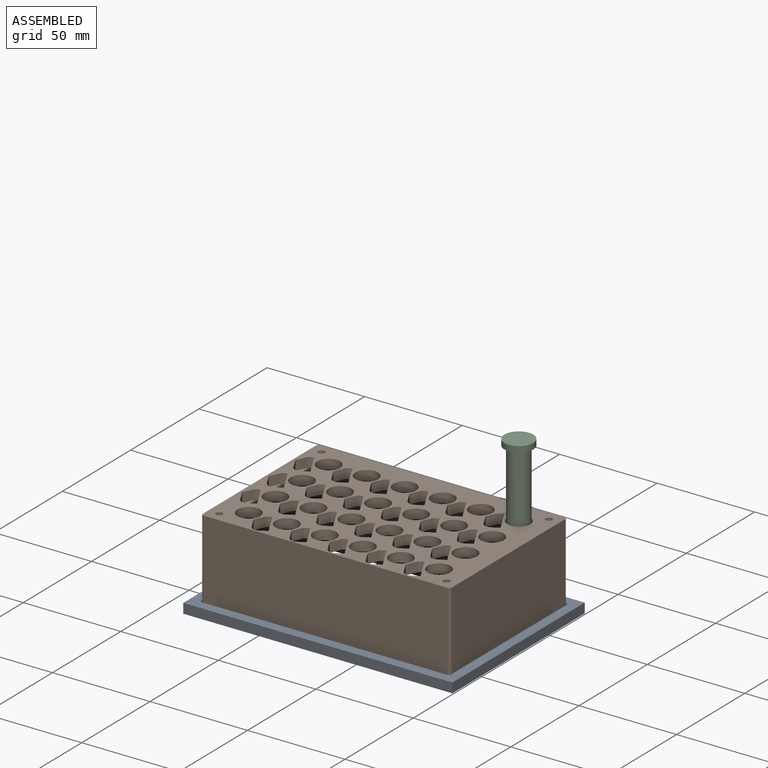
[diagram: assembled view]
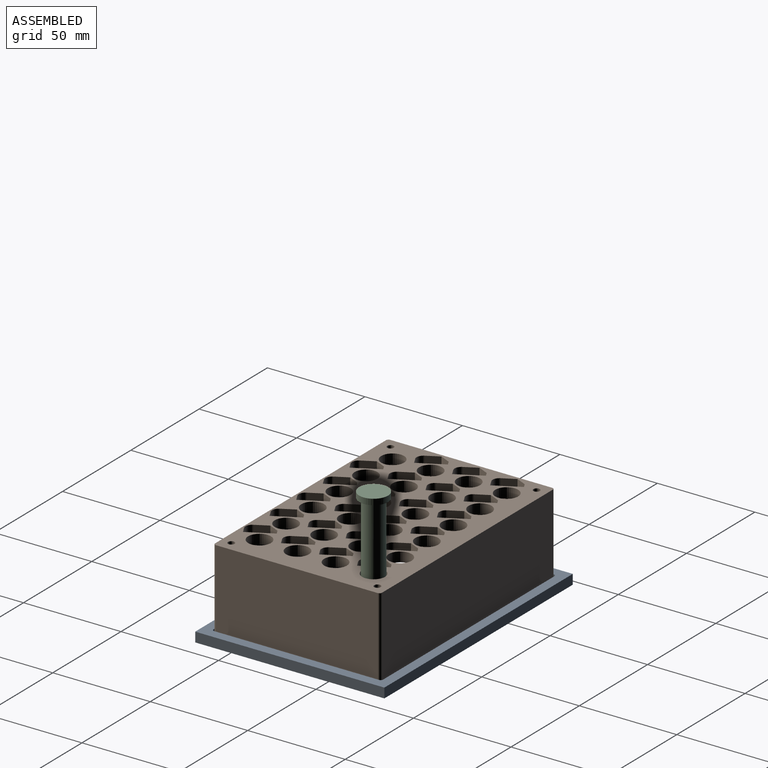
[diagram: assembled view, second angle]
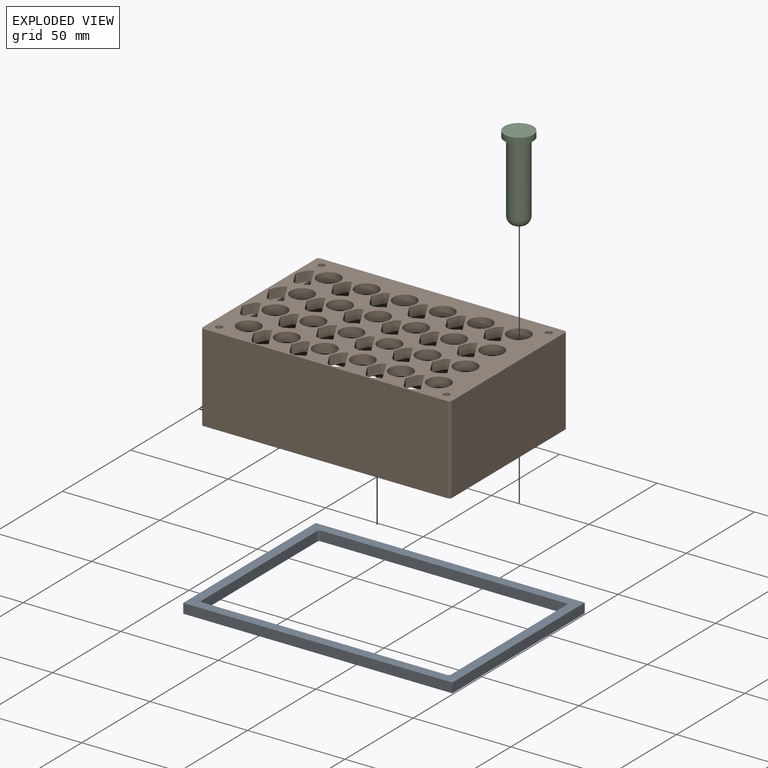
[diagram: exploded view]
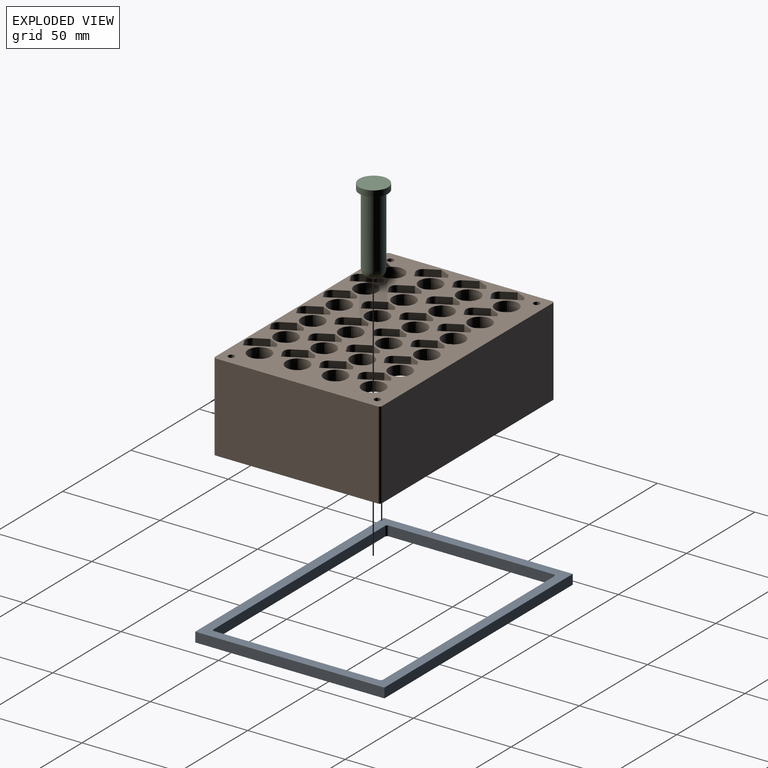
[diagram: exploded view, second angle]
ASSEMBLY  parts=3 mates=2
PART A: 14 faces, bbox 138x97x5 mm
  f0: plane 97x5mm, normal (1,0,0), area 485mm2, adj f1,f11,f12,f13
  f1: plane 138x5mm, normal (0,1,0), area 690mm2, adj f0,f2,f12,f13
  f2: plane 97x5mm, normal (-1,0,0), area 485mm2, adj f1,f11,f12,f13
  f3: cylinder r=1.2mm len=5mm, axis (0,0,-1), area 9.4mm2, adj f4,f10,f12,f13
  f4: plane 125.6x5mm, normal (0,-1,0), area 628mm2, adj f3,f5,f12,f13
  f5: cylinder r=1.2mm len=5mm, axis (0,0,-1), area 9.4mm2, adj f4,f6,f12,f13
  f6: plane 84.6x5mm, normal (-1,0,0), area 423mm2, adj f5,f7,f12,f13
  f7: cylinder r=1.2mm len=5mm, axis (0,0,-1), area 9.4mm2, adj f6,f8,f12,f13
  f8: plane 125.6x5mm, normal (0,1,0), area 628mm2, adj f7,f9,f12,f13
  f9: cylinder r=1.2mm len=5mm, axis (0,0,-1), area 9.4mm2, adj f8,f10,f12,f13
  f10: plane 84.6x5mm, normal (1,0,0), area 423mm2, adj f3,f9,f12,f13
  f11: plane 138x5mm, normal (0,-1,0), area 690mm2, adj f0,f2,f12,f13
  f12: plane 138x97mm, normal (0,0,1), area 2251.2mm2, adj f0,f1,f2,f3,f4,f5,f6,f7
  f13: plane 138x97mm, normal (0,0,-1), area 2251.2mm2, adj f0,f1,f2,f3,f4,f5,f6,f7
PART B: 201 faces, bbox 127.8x85.6x45 mm
  f0: plane 119.76x77.6mm, normal (0,0,-1), area 4609.4mm2, adj f6,f8,f9,f11,f12,f14,f15,f16
  f1: plane 0.88x0.62mm, normal (0,0,-1), area 0.2mm2, adj f149,f191,f192
  f2: plane 0.88x0.62mm, normal (0,0,-1), area 0.2mm2, adj f150,f191,f194
  f3: plane 0.88x0.62mm, normal (0,0,-1), area 0.2mm2, adj f148,f192,f193
  f4: plane 0.88x0.62mm, normal (0,0,-1), area 0.2mm2, adj f151,f193,f194
  f5: plane 83x45mm, normal (-1,0,0), area 3734.9mm2, adj f75,f195,f197,f198
  f6: plane 5x2.41mm, normal (0.48,-0.88,0), area 13.7mm2, adj f0,f7,f75,f146,f176
  f7: plane 5.43x5mm, normal (0.91,-0.42,0), area 29.9mm2, adj f6,f8,f75,f176
  f8: plane 6.34x5mm, normal (0.88,0.48,0), area 36mm2, adj f0,f7,f75,f145,f176
  f9: plane 5x2.41mm, normal (0.48,-0.88,0), area 13.7mm2, adj f0,f10,f75,f143,f177
  f10: plane 5.43x5mm, normal (0.91,-0.42,0), area 29.9mm2, adj f9,f11,f75,f177
  f11: plane 6.34x5mm, normal (0.88,0.48,0), area 36mm2, adj f0,f10,f75,f142,f177
  f12: plane 5x2.41mm, normal (0.48,-0.88,0), area 13.7mm2, adj f0,f13,f75,f140,f178
  f13: plane 5.43x5mm, normal (0.91,-0.42,0), area 29.9mm2, adj f12,f14,f75,f178
  f14: plane 6.34x5mm, normal (0.88,0.48,0), area 36mm2, adj f0,f13,f75,f139,f178
  f15: plane 5x2.41mm, normal (0.48,-0.88,0), area 13.7mm2, adj f0,f16,f75,f137
  f16: plane 5.43x5mm, normal (0.91,-0.42,0), area 29.9mm2, adj f0,f15,f17,f75
  f17: plane 6.34x5mm, normal (0.88,0.48,0), area 36mm2, adj f0,f16,f75,f136,f196
  f18: plane 5x2.41mm, normal (0.48,-0.88,0), area 13.7mm2, adj f0,f19,f75,f134
  f19: plane 5.43x5mm, normal (0.91,-0.42,0), area 29.9mm2, adj f0,f18,f20,f75
  f20: plane 6.34x5mm, normal (0.88,0.48,0), area 36mm2, adj f0,f19,f75,f133
  f21: plane 5x2.41mm, normal (0.48,-0.88,0), area 13.7mm2, adj f0,f22,f75,f131
  f22: plane 5.43x5mm, normal (0.91,-0.42,0), area 29.9mm2, adj f0,f21,f23,f75
  f23: plane 6.34x5mm, normal (0.88,0.48,0), area 36mm2, adj f0,f22,f75,f130
  f24: plane 5x2.41mm, normal (0.48,-0.88,0), area 13.7mm2, adj f0,f25,f75,f128
  f25: plane 5.43x5mm, normal (0.91,-0.42,0), area 29.9mm2, adj f0,f24,f26,f75
  f26: plane 6.34x5mm, normal (0.88,0.48,0), area 36mm2, adj f0,f25,f75,f127
  f27: plane 5x2.41mm, normal (0.48,-0.88,0), area 13.7mm2, adj f0,f28,f75,f125
  f28: plane 5.43x5mm, normal (0.91,-0.42,0), area 29.9mm2, adj f0,f27,f29,f75
  f29: plane 6.34x5mm, normal (0.88,0.48,0), area 36mm2, adj f0,f28,f75,f124,f182
  f30: plane 5x2.41mm, normal (0.48,-0.88,0), area 13.7mm2, adj f0,f31,f75,f122
  f31: plane 5.43x5mm, normal (0.91,-0.42,0), area 29.9mm2, adj f0,f30,f32,f75
  f32: plane 6.34x5mm, normal (0.88,0.48,0), area 36mm2, adj f0,f31,f75,f121
  f33: plane 5x2.41mm, normal (0.48,-0.88,0), area 13.7mm2, adj f0,f34,f75,f119
  f34: plane 5.43x5mm, normal (0.91,-0.42,0), area 29.9mm2, adj f0,f33,f35,f75
  f35: plane 6.34x5mm, normal (0.88,0.48,0), area 36mm2, adj f0,f34,f75,f118
  f36: plane 5x2.41mm, normal (0.48,-0.88,0), area 13.7mm2, adj f0,f37,f75,f116
  f37: plane 5.43x5mm, normal (0.91,-0.42,0), area 29.9mm2, adj f0,f36,f38,f75
  f38: plane 6.34x5mm, normal (0.88,0.48,0), area 36mm2, adj f0,f37,f75,f115
  f39: plane 5x2.41mm, normal (0.48,-0.88,0), area 13.7mm2, adj f0,f40,f75,f113
  f40: plane 5.43x5mm, normal (0.91,-0.42,0), area 29.9mm2, adj f0,f39,f41,f75
  f41: plane 6.34x5mm, normal (0.88,0.48,0), area 36mm2, adj f0,f40,f75,f112,f181
  f42: plane 5x2.41mm, normal (0.48,-0.88,0), area 13.7mm2, adj f0,f43,f75,f110
  f43: plane 5.43x5mm, normal (0.91,-0.42,0), area 29.9mm2, adj f0,f42,f44,f75
  f44: plane 6.34x5mm, normal (0.88,0.48,0), area 36mm2, adj f0,f43,f75,f109
  f45: plane 5x2.41mm, normal (0.48,-0.88,0), area 13.7mm2, adj f0,f46,f75,f107
  f46: plane 5.43x5mm, normal (0.91,-0.42,0), area 29.9mm2, adj f0,f45,f47,f75
  f47: plane 6.34x5mm, normal (0.88,0.48,0), area 36mm2, adj f0,f46,f75,f106
  f48: plane 5x2.41mm, normal (0.48,-0.88,0), area 13.7mm2, adj f0,f49,f75,f104
  f49: plane 5.43x5mm, normal (0.91,-0.42,0), area 29.9mm2, adj f0,f48,f50,f75
  f50: plane 6.34x5mm, normal (0.88,0.48,0), area 36mm2, adj f0,f49,f75,f103
  f51: plane 5x2.41mm, normal (0.48,-0.88,0), area 13.7mm2, adj f0,f52,f75,f101
  f52: plane 5.43x5mm, normal (0.91,-0.42,0), area 29.9mm2, adj f0,f51,f53,f75
  f53: plane 6.34x5mm, normal (0.88,0.48,0), area 36mm2, adj f0,f52,f75,f100,f180
  f54: plane 5x2.41mm, normal (0.48,-0.88,0), area 13.7mm2, adj f0,f55,f75,f98
  f55: plane 5.43x5mm, normal (0.91,-0.42,0), area 29.9mm2, adj f0,f54,f56,f75
  f56: plane 6.34x5mm, normal (0.88,0.48,0), area 36mm2, adj f0,f55,f75,f97
  f57: plane 5x2.41mm, normal (0.48,-0.88,0), area 13.7mm2, adj f0,f58,f75,f95
  f58: plane 5.43x5mm, normal (0.91,-0.42,0), area 29.9mm2, adj f0,f57,f59,f75
  f59: plane 6.34x5mm, normal (0.88,0.48,0), area 36mm2, adj f0,f58,f75,f94
  f60: plane 5x2.41mm, normal (0.48,-0.88,0), area 13.7mm2, adj f0,f61,f75,f92
  f61: plane 5.43x5mm, normal (0.91,-0.42,0), area 29.9mm2, adj f0,f60,f62,f75
  f62: plane 6.34x5mm, normal (0.88,0.48,0), area 36mm2, adj f0,f61,f75,f91
  f63: plane 5x2.41mm, normal (0.48,-0.88,0), area 13.7mm2, adj f0,f64,f75,f89
  f64: plane 5.43x5mm, normal (0.91,-0.42,0), area 29.9mm2, adj f0,f63,f65,f75
  f65: plane 6.34x5mm, normal (0.88,0.48,0), area 36mm2, adj f0,f64,f75,f88,f179
  f66: plane 5x2.41mm, normal (0.48,-0.88,0), area 13.7mm2, adj f0,f67,f75,f86
  f67: plane 5.43x5mm, normal (0.91,-0.42,0), area 29.9mm2, adj f0,f66,f68,f75
  f68: plane 6.34x5mm, normal (0.88,0.48,0), area 36mm2, adj f0,f67,f75,f85
  f69: plane 5x2.41mm, normal (0.48,-0.88,0), area 13.7mm2, adj f0,f70,f75,f83
  f70: plane 5.43x5mm, normal (0.91,-0.42,0), area 29.9mm2, adj f0,f69,f71,f75
  f71: plane 6.34x5mm, normal (0.88,0.48,0), area 36mm2, adj f0,f70,f75,f82
  f72: plane 5x2.41mm, normal (0.48,-0.88,0), area 13.7mm2, adj f0,f73,f75,f80
  f73: plane 5.43x5mm, normal (0.91,-0.42,0), area 29.9mm2, adj f0,f72,f74,f75
  f74: plane 6.34x5mm, normal (0.88,0.48,0), area 36mm2, adj f0,f73,f75,f79
  f75: plane 127.76x85.6mm, normal (0,0,1), area 6099.9mm2, adj f5,f6,f7,f8,f9,f10,f11,f12
  f76: plane 125.16x45mm, normal (0,1,0), area 5632.3mm2, adj f75,f195,f198,f199
  f77: plane 125.16x45mm, normal (0,-1,0), area 5632.3mm2, adj f75,f195,f197,f200
  f78: plane 83x45mm, normal (1,0,0), area 3734.9mm2, adj f75,f195,f199,f200
  f79: cylinder r=3.5mm len=5mm, axis (0,0,1), area 27.5mm2, adj f0,f74,f75,f81
  f80: plane 12.56x6.81mm, normal (-0.88,-0.48,0), area 71.4mm2, adj f0,f72,f75,f81
  f81: plane 5x3.55mm, normal (-0.48,0.88,0), area 20.2mm2, adj f0,f75,f79,f80
  f82: cylinder r=3.5mm len=5mm, axis (0,0,1), area 27.5mm2, adj f0,f71,f75,f84
  f83: plane 12.56x6.81mm, normal (-0.88,-0.48,0), area 71.4mm2, adj f0,f69,f75,f84
  f84: plane 5x3.55mm, normal (-0.48,0.88,0), area 20.2mm2, adj f0,f75,f82,f83
  f85: cylinder r=3.5mm len=5mm, axis (0,0,1), area 27.5mm2, adj f0,f68,f75,f87
  f86: plane 12.56x6.81mm, normal (-0.88,-0.48,0), area 71.4mm2, adj f0,f66,f75,f87
  f87: plane 5x3.55mm, normal (-0.48,0.88,0), area 20.2mm2, adj f0,f75,f85,f86
  f88: cylinder r=3.5mm len=5mm, axis (0,0,1), area 27.5mm2, adj f65,f75,f90,f179
  f89: plane 12.56x6.81mm, normal (-0.88,-0.48,0), area 71.4mm2, adj f0,f63,f75,f90,f179
  f90: plane 5x3.55mm, normal (-0.48,0.88,0), area 20.2mm2, adj f75,f88,f89,f179
  f91: cylinder r=3.5mm len=5mm, axis (0,0,1), area 27.5mm2, adj f0,f62,f75,f93
  f92: plane 12.56x6.81mm, normal (-0.88,-0.48,0), area 71.4mm2, adj f0,f60,f75,f93
  f93: plane 5x3.55mm, normal (-0.48,0.88,0), area 20.2mm2, adj f0,f75,f91,f92
  f94: cylinder r=3.5mm len=5mm, axis (0,0,1), area 27.5mm2, adj f0,f59,f75,f96
  f95: plane 12.56x6.81mm, normal (-0.88,-0.48,0), area 71.4mm2, adj f0,f57,f75,f96
  f96: plane 5x3.55mm, normal (-0.48,0.88,0), area 20.2mm2, adj f0,f75,f94,f95
  f97: cylinder r=3.5mm len=5mm, axis (0,0,1), area 27.5mm2, adj f0,f56,f75,f99
  f98: plane 12.56x6.81mm, normal (-0.88,-0.48,0), area 71.4mm2, adj f0,f54,f75,f99
  f99: plane 5x3.55mm, normal (-0.48,0.88,0), area 20.2mm2, adj f0,f75,f97,f98
  f100: cylinder r=3.5mm len=5mm, axis (0,0,1), area 27.5mm2, adj f53,f75,f102,f180
  f101: plane 12.56x6.81mm, normal (-0.88,-0.48,0), area 71.4mm2, adj f0,f51,f75,f102,f180
  f102: plane 5x3.55mm, normal (-0.48,0.88,0), area 20.2mm2, adj f75,f100,f101,f180
  f103: cylinder r=3.5mm len=5mm, axis (0,0,1), area 27.5mm2, adj f0,f50,f75,f105
  f104: plane 12.56x6.81mm, normal (-0.88,-0.48,0), area 71.4mm2, adj f0,f48,f75,f105
  f105: plane 5x3.55mm, normal (-0.48,0.88,0), area 20.2mm2, adj f0,f75,f103,f104
  f106: cylinder r=3.5mm len=5mm, axis (0,0,1), area 27.5mm2, adj f0,f47,f75,f108
  f107: plane 12.56x6.81mm, normal (-0.88,-0.48,0), area 71.4mm2, adj f0,f45,f75,f108
  f108: plane 5x3.55mm, normal (-0.48,0.88,0), area 20.2mm2, adj f0,f75,f106,f107
  f109: cylinder r=3.5mm len=5mm, axis (0,0,1), area 27.5mm2, adj f0,f44,f75,f111
  f110: plane 12.56x6.81mm, normal (-0.88,-0.48,0), area 71.4mm2, adj f0,f42,f75,f111
  f111: plane 5x3.55mm, normal (-0.48,0.88,0), area 20.2mm2, adj f0,f75,f109,f110
  f112: cylinder r=3.5mm len=5mm, axis (0,0,1), area 27.5mm2, adj f41,f75,f114,f181
  f113: plane 12.56x6.81mm, normal (-0.88,-0.48,0), area 71.4mm2, adj f0,f39,f75,f114,f181
  f114: plane 5x3.55mm, normal (-0.48,0.88,0), area 20.2mm2, adj f75,f112,f113,f181
  f115: cylinder r=3.5mm len=5mm, axis (0,0,1), area 27.5mm2, adj f0,f38,f75,f117
  f116: plane 12.56x6.81mm, normal (-0.88,-0.48,0), area 71.4mm2, adj f0,f36,f75,f117
  f117: plane 5x3.55mm, normal (-0.48,0.88,0), area 20.2mm2, adj f0,f75,f115,f116
  f118: cylinder r=3.5mm len=5mm, axis (0,0,1), area 27.5mm2, adj f0,f35,f75,f120
  f119: plane 12.56x6.81mm, normal (-0.88,-0.48,0), area 71.4mm2, adj f0,f33,f75,f120
  f120: plane 5x3.55mm, normal (-0.48,0.88,0), area 20.2mm2, adj f0,f75,f118,f119
  f121: cylinder r=3.5mm len=5mm, axis (0,0,1), area 27.5mm2, adj f0,f32,f75,f123
  f122: plane 12.56x6.81mm, normal (-0.88,-0.48,0), area 71.4mm2, adj f0,f30,f75,f123
  f123: plane 5x3.55mm, normal (-0.48,0.88,0), area 20.2mm2, adj f0,f75,f121,f122
  f124: cylinder r=3.5mm len=5mm, axis (0,0,1), area 27.5mm2, adj f29,f75,f126,f182
  f125: plane 12.56x6.81mm, normal (-0.88,-0.48,0), area 71.4mm2, adj f0,f27,f75,f126,f182
  f126: plane 5x3.55mm, normal (-0.48,0.88,0), area 20.2mm2, adj f75,f124,f125,f182
  f127: cylinder r=3.5mm len=5mm, axis (0,0,1), area 27.5mm2, adj f0,f26,f75,f129
  f128: plane 12.56x6.81mm, normal (-0.88,-0.48,0), area 71.4mm2, adj f0,f24,f75,f129
  f129: plane 5x3.55mm, normal (-0.48,0.88,0), area 20.2mm2, adj f0,f75,f127,f128
  f130: cylinder r=3.5mm len=5mm, axis (0,0,1), area 27.5mm2, adj f0,f23,f75,f132
  f131: plane 12.56x6.81mm, normal (-0.88,-0.48,0), area 71.4mm2, adj f0,f21,f75,f132
  f132: plane 5x3.55mm, normal (-0.48,0.88,0), area 20.2mm2, adj f0,f75,f130,f131
  f133: cylinder r=3.5mm len=5mm, axis (0,0,1), area 27.5mm2, adj f0,f20,f75,f135
  f134: plane 12.56x6.81mm, normal (-0.88,-0.48,0), area 71.4mm2, adj f0,f18,f75,f135
  f135: plane 5x3.55mm, normal (-0.48,0.88,0), area 20.2mm2, adj f0,f75,f133,f134
  f136: cylinder r=3.5mm len=5mm, axis (0,0,1), area 27.5mm2, adj f17,f75,f138,f196
  f137: plane 12.56x6.81mm, normal (-0.88,-0.48,0), area 71.4mm2, adj f0,f15,f75,f138,f196
  f138: plane 5x3.55mm, normal (-0.48,0.88,0), area 20.2mm2, adj f75,f136,f137,f196
  f139: cylinder r=3.5mm len=5mm, axis (0,0,1), area 27.5mm2, adj f0,f14,f75,f141
  f140: plane 12.56x6.81mm, normal (-0.88,-0.48,0), area 71.4mm2, adj f0,f12,f75,f141
  f141: plane 5x3.55mm, normal (-0.48,0.88,0), area 20.2mm2, adj f0,f75,f139,f140
  f142: cylinder r=3.5mm len=5mm, axis (0,0,1), area 27.5mm2, adj f0,f11,f75,f144
  f143: plane 12.56x6.81mm, normal (-0.88,-0.48,0), area 71.4mm2, adj f0,f9,f75,f144
  f144: plane 5x3.55mm, normal (-0.48,0.88,0), area 20.2mm2, adj f0,f75,f142,f143
  f145: cylinder r=3.5mm len=5mm, axis (0,0,1), area 27.5mm2, adj f0,f8,f75,f147
  f146: plane 12.56x6.81mm, normal (-0.88,-0.48,0), area 71.4mm2, adj f0,f6,f75,f147
  f147: plane 5x3.55mm, normal (-0.48,0.88,0), area 20.2mm2, adj f0,f75,f145,f146
  f148: cylinder r=1.65mm len=5mm, axis (0,0,1), area 51.9mm2, adj f0,f3,f75,f183,f184
  f149: cylinder r=1.65mm len=5mm, axis (0,0,1), area 51.9mm2, adj f0,f1,f75,f185,f186
  f150: cylinder r=1.65mm len=5mm, axis (0,0,1), area 51.9mm2, adj f0,f2,f75,f187,f188
  f151: cylinder r=1.65mm len=5mm, axis (0,0,1), area 51.9mm2, adj f0,f4,f75,f189,f190
  f152: cylinder r=5.85mm len=11.7mm, axis (0,0,1), area 183.8mm2, adj f0,f75
  f153: cylinder r=5.85mm len=11.7mm, axis (0,0,1), area 183.8mm2, adj f0,f75
  f154: cylinder r=5.85mm len=11.7mm, axis (0,0,1), area 183.8mm2, adj f0,f75
  f155: cylinder r=5.85mm len=11.7mm, axis (0,0,1), area 183.8mm2, adj f0,f75
  f156: cylinder r=5.85mm len=11.7mm, axis (0,0,1), area 183.8mm2, adj f0,f75
  f157: cylinder r=5.85mm len=11.7mm, axis (0,0,1), area 183.8mm2, adj f0,f75
  f158: cylinder r=5.85mm len=11.7mm, axis (0,0,1), area 183.8mm2, adj f0,f75
  f159: cylinder r=5.85mm len=11.7mm, axis (0,0,1), area 183.8mm2, adj f0,f75
  f160: cylinder r=5.85mm len=11.7mm, axis (0,0,1), area 183.8mm2, adj f0,f75
  f161: cylinder r=5.85mm len=11.7mm, axis (0,0,1), area 183.8mm2, adj f0,f75
  f162: cylinder r=5.85mm len=11.7mm, axis (0,0,1), area 183.8mm2, adj f0,f75
  f163: cylinder r=5.85mm len=11.7mm, axis (0,0,1), area 183.8mm2, adj f0,f75
  f164: cylinder r=5.85mm len=11.7mm, axis (0,0,1), area 183.8mm2, adj f0,f75
  f165: cylinder r=5.85mm len=11.7mm, axis (0,0,1), area 183.8mm2, adj f0,f75
  f166: cylinder r=5.85mm len=11.7mm, axis (0,0,1), area 183.8mm2, adj f0,f75
  f167: cylinder r=5.85mm len=11.7mm, axis (0,0,1), area 183.8mm2, adj f0,f75
  f168: cylinder r=5.85mm len=11.7mm, axis (0,0,1), area 183.8mm2, adj f0,f75
  f169: cylinder r=5.85mm len=11.7mm, axis (0,0,1), area 183.8mm2, adj f0,f75
  f170: cylinder r=5.85mm len=11.7mm, axis (0,0,1), area 183.8mm2, adj f0,f75
  f171: cylinder r=5.85mm len=11.7mm, axis (0,0,1), area 183.8mm2, adj f0,f75
  f172: cylinder r=5.85mm len=11.7mm, axis (0,0,1), area 183.8mm2, adj f0,f75
  f173: cylinder r=5.85mm len=11.7mm, axis (0,0,1), area 183.8mm2, adj f0,f75
  f174: cylinder r=5.85mm len=11.7mm, axis (0,0,1), area 183.8mm2, adj f0,f75
  f175: cylinder r=5.85mm len=11.7mm, axis (0,0,1), area 183.8mm2, adj f0,f75
  f176: plane 10.71x2.78mm, normal (0,0,1), area 15.5mm2, adj f6,f7,f8,f193
  f177: plane 10.71x2.78mm, normal (0,0,1), area 15.5mm2, adj f9,f10,f11,f193
  f178: plane 10.71x2.78mm, normal (0,0,1), area 15.5mm2, adj f12,f13,f14,f193
  f179: plane 9.08x3.27mm, normal (0,0,1), area 20.7mm2, adj f65,f88,f89,f90,f194
  f180: plane 9.08x3.27mm, normal (0,0,1), area 20.7mm2, adj f53,f100,f101,f102,f194
  f181: plane 9.08x3.27mm, normal (0,0,1), area 20.7mm2, adj f41,f112,f113,f114,f194
  f182: plane 9.08x3.27mm, normal (0,0,1), area 20.7mm2, adj f29,f124,f125,f126,f194
  f183: plane 1.95x0.32mm, normal (0,0,1), area 0.4mm2, adj f148,f192
  f184: plane 0.9x0.06mm, normal (0,0,1), area 0mm2, adj f148,f193
  f185: plane 1.95x0.32mm, normal (0,0,1), area 0.4mm2, adj f149,f192
  f186: plane 0.9x0.06mm, normal (0,0,1), area 0mm2, adj f149,f191
  f187: plane 0.9x0.06mm, normal (0,0,1), area 0mm2, adj f150,f191
  f188: plane 1.95x0.32mm, normal (0,0,1), area 0.4mm2, adj f150,f194
  f189: plane 1.95x0.32mm, normal (0,0,1), area 0.4mm2, adj f151,f194
  f190: plane 0.9x0.06mm, normal (0,0,1), area 0mm2, adj f151,f193
  f191: plane 77.6x40mm, normal (-1,0,0), area 3103.9mm2, adj f0,f1,f2,f186,f187,f192,f194,f195
  f192: plane 119.76x40mm, normal (0,-1,0), area 4790.5mm2, adj f0,f1,f3,f183,f185,f191,f193,f195
  f193: plane 77.6x40mm, normal (1,0,0), area 3103.9mm2, adj f0,f3,f4,f176,f177,f178,f184,f190
  f194: plane 119.76x40mm, normal (0,1,0), area 4790.5mm2, adj f0,f2,f4,f179,f180,f181,f182,f188
  f195: plane 127.76x85.6mm, normal (0,0,-1), area 1641.4mm2, adj f5,f76,f77,f78,f191,f192,f193,f194
  f196: plane 9.08x3.27mm, normal (0,0,1), area 20.7mm2, adj f17,f136,f137,f138,f194
  f197: cylinder r=1.3mm len=45mm, axis (0,0,-1), area 91.9mm2, adj f5,f75,f77,f195
  f198: cylinder r=1.3mm len=45mm, axis (0,0,1), area 91.9mm2, adj f5,f75,f76,f195
  f199: cylinder r=1.3mm len=45mm, axis (0,0,-1), area 91.9mm2, adj f75,f76,f78,f195
  f200: cylinder r=1.3mm len=45mm, axis (0,0,1), area 91.9mm2, adj f75,f77,f78,f195
PART C: 6 faces, bbox 14.8x14.8x43.6 mm
  f0: cylinder r=5.4mm len=35.6mm, axis (0,0,1), area 1207.9mm2, adj f4,f5
  f1: plane 0.8x0.8mm, normal (0,0,-1), area 0.5mm2, adj f5
  f2: cylinder r=7.4mm len=14.8mm, axis (0,0,-1), area 139.5mm2, adj f3,f4
  f3: plane 14.8x14.8mm, normal (0,0,1), area 172mm2, adj f2
  f4: plane 14.8x14.8mm, normal (0,0,-1), area 80.4mm2, adj f0,f2
  f5: bspline ~11.08x11.08mm, area 188.9mm2, adj f0,f1
PLACE A t=(0.05,-0.08,-2.67)mm fixed
PLACE B t=(63.93,42.71,37.33)mm
PLACE C t=(48.95,28.82,77.38)mm
MATE slider C.f0 <-> B.f155  axis (0,0,1) through (48.95,28.82,59.58)mm
MATE fastened A.f13 <-> B.f195  axis (0,0,-1) through (0.05,-0.08,-2.67)mm
